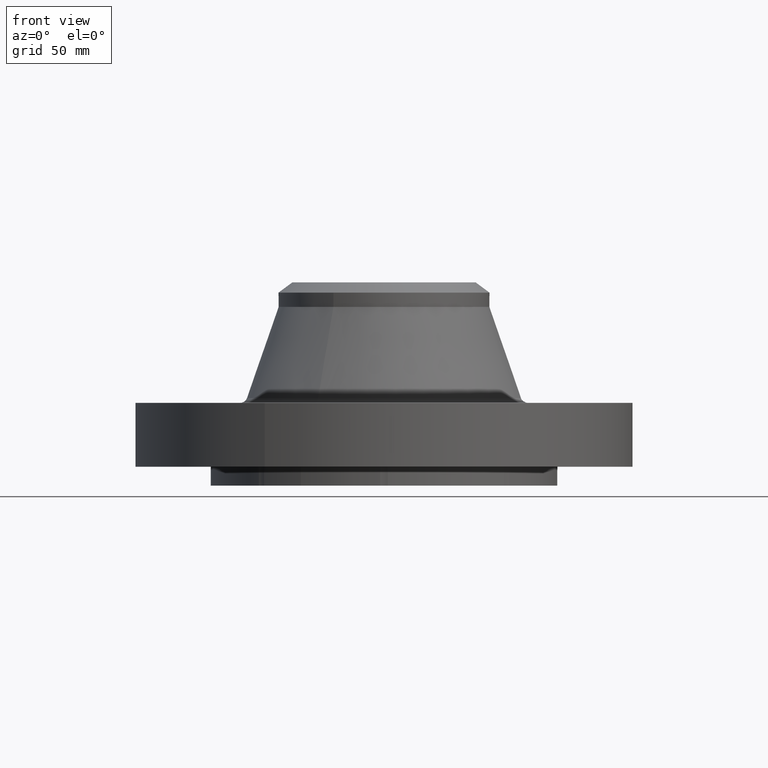
[diagram: clean part render]
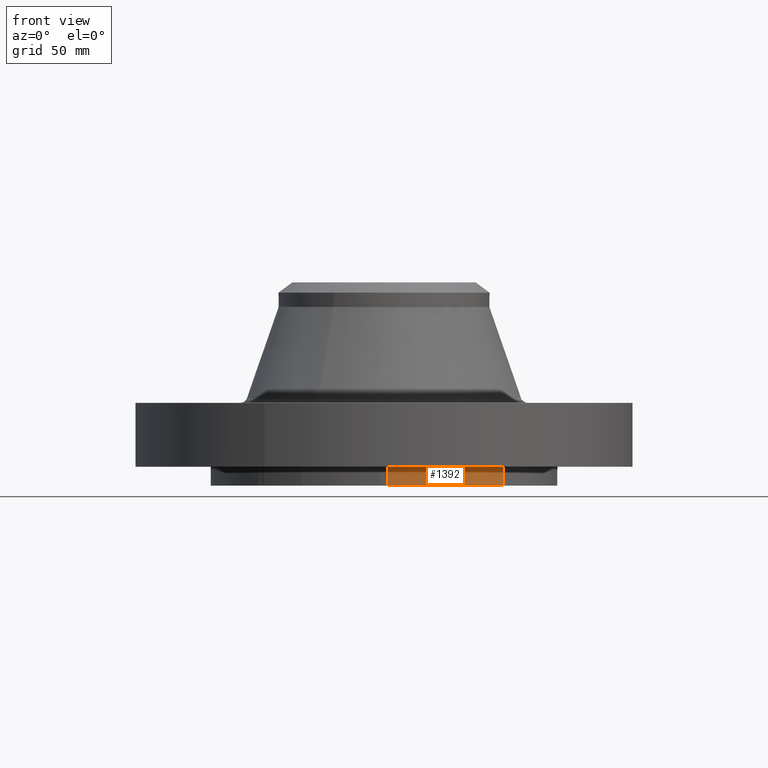
[diagram: same view with one face highlighted and labeled with its STEP entity id]
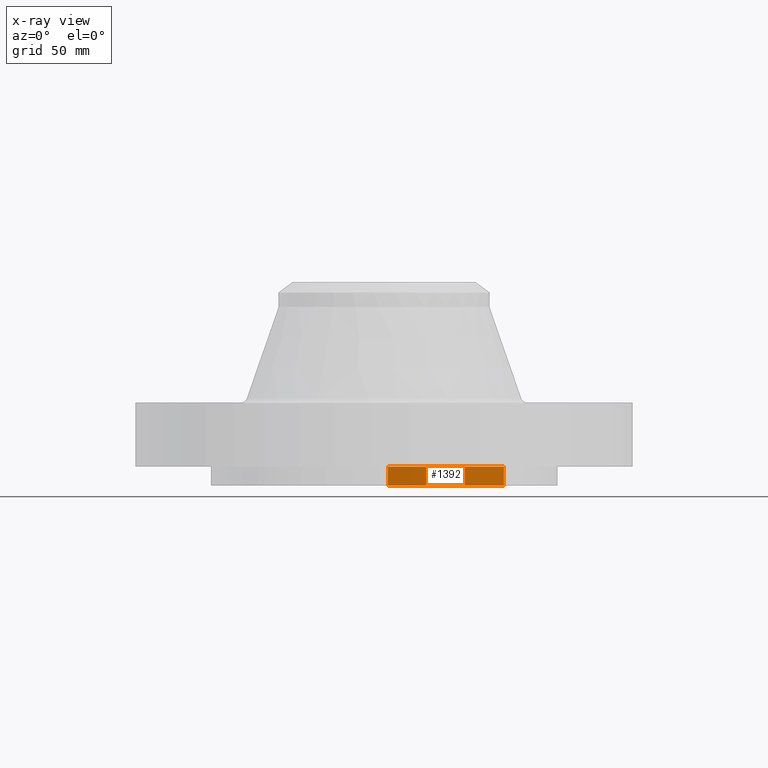
[diagram: x-ray of the same camera — body ghosted, the highlighted face saturated]
A machine part, front view. The second image highlights one B-rep face of the part: STEP entity #1392.
The next image is the same camera in x-ray: the body ghosted, the highlighted face saturated — about 0% of this face is hidden behind the body in this view.
In plain terms, the highlighted cylindrical surface (partial cylindrical patch) has radius 73.025 mm, axis along (0, 0, -1).
Its self-contained STEP definition (entity closure, byte-faithful):
#376=AXIS2_PLACEMENT_3D('Circle Axis2P3D',#374,#375,$) ;
#710=AXIS2_PLACEMENT_3D('Circle Axis2P3D',#708,#709,$) ;
#904=AXIS2_PLACEMENT_3D('Cylinder Axis2P3D',#901,#902,#903) ;
#371=CARTESIAN_POINT('Vertex',(0.061640903685,-2.87433912388,-7.95024588595E-013)) ;
#374=CARTESIAN_POINT('Axis2P3D Location',(2.35276365319E-010,-3.52486264149E-010,0.)) ;
#378=CARTESIAN_POINT('Vertex',(1.98887798493,-2.07605138692,-7.95024588595E-013)) ;
#705=CARTESIAN_POINT('Vertex',(1.98887798493,-2.07605138692,-0.313000000031)) ;
#708=CARTESIAN_POINT('Axis2P3D Location',(-6.398773025E-011,1.17691892977E-010,-0.313000000001)) ;
#712=CARTESIAN_POINT('Vertex',(0.061640903685,-2.87433912388,-0.313000000031)) ;
#901=CARTESIAN_POINT('Axis2P3D Location',(0.,0.,1.37350000001)) ;
#1334=CARTESIAN_POINT('Line Origine',(0.0616409036858,-2.87433912388,0.373500000005)) ;
#1381=CARTESIAN_POINT('Line Origine',(1.98887798493,-2.07605138692,-0.156500000016)) ;
#375=DIRECTION('Axis2P3D Direction',(0.,0.,-0.0393700787402)) ;
#709=DIRECTION('Axis2P3D Direction',(0.,0.,-0.0393700787402)) ;
#902=DIRECTION('Axis2P3D Direction',(0.,0.,-0.0393700787402)) ;
#903=DIRECTION('Axis2P3D XDirection',(0.0272355766508,-0.0284293240248,0.)) ;
#1335=DIRECTION('Vector Direction',(0.,0.,-0.0393700787402)) ;
#1382=DIRECTION('Vector Direction',(0.,0.,-0.0393700787402)) ;
#1336=VECTOR('Line Direction',#1335,0.0393700787402) ;
#1383=VECTOR('Line Direction',#1382,0.0393700787402) ;
#1387=ORIENTED_EDGE('',*,*,#714,.F.) ;
#1388=ORIENTED_EDGE('',*,*,#1385,.F.) ;
#1389=ORIENTED_EDGE('',*,*,#380,.T.) ;
#1390=ORIENTED_EDGE('',*,*,#1338,.T.) ;
#1392=ADVANCED_FACE('PartBody',(#1391),#905,.T.) ;
#377=CIRCLE('generated circle',#376,2.87499999962) ;
#711=CIRCLE('generated circle',#710,2.87500000015) ;
#905=CYLINDRICAL_SURFACE('generated cylinder',#904,2.87500000001) ;
#380=EDGE_CURVE('',#379,#372,#377,.T.) ;
#714=EDGE_CURVE('',#706,#713,#711,.T.) ;
#1338=EDGE_CURVE('',#372,#713,#1337,.T.) ;
#1385=EDGE_CURVE('',#379,#706,#1384,.T.) ;
#1386=EDGE_LOOP('',(#1387,#1388,#1389,#1390)) ;
#1391=FACE_OUTER_BOUND('',#1386,.T.) ;
#1337=LINE('Line',#1334,#1336) ;
#1384=LINE('Line',#1381,#1383) ;
#372=VERTEX_POINT('',#371) ;
#379=VERTEX_POINT('',#378) ;
#706=VERTEX_POINT('',#705) ;
#713=VERTEX_POINT('',#712) ;